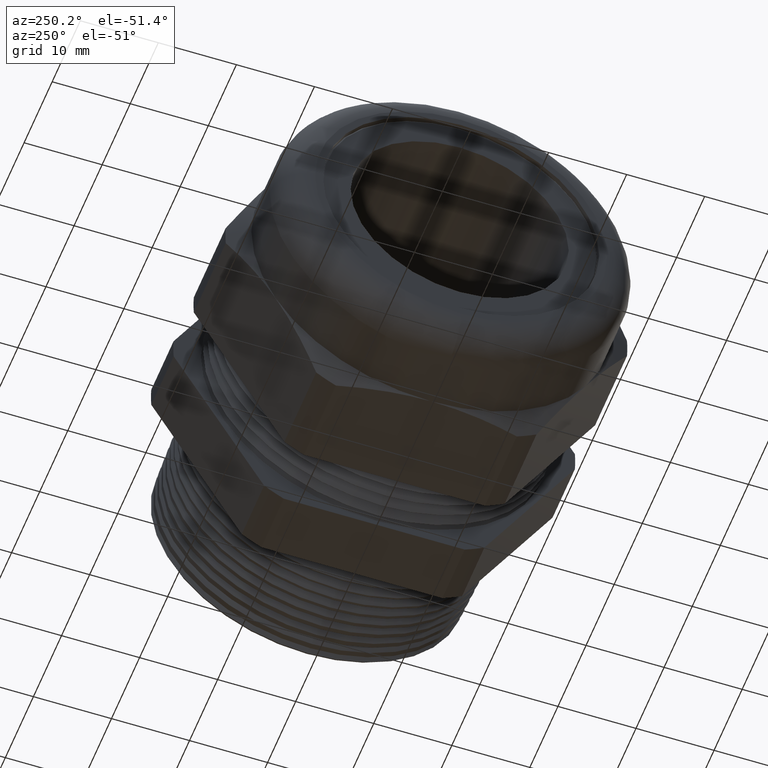
[diagram: clean part render]
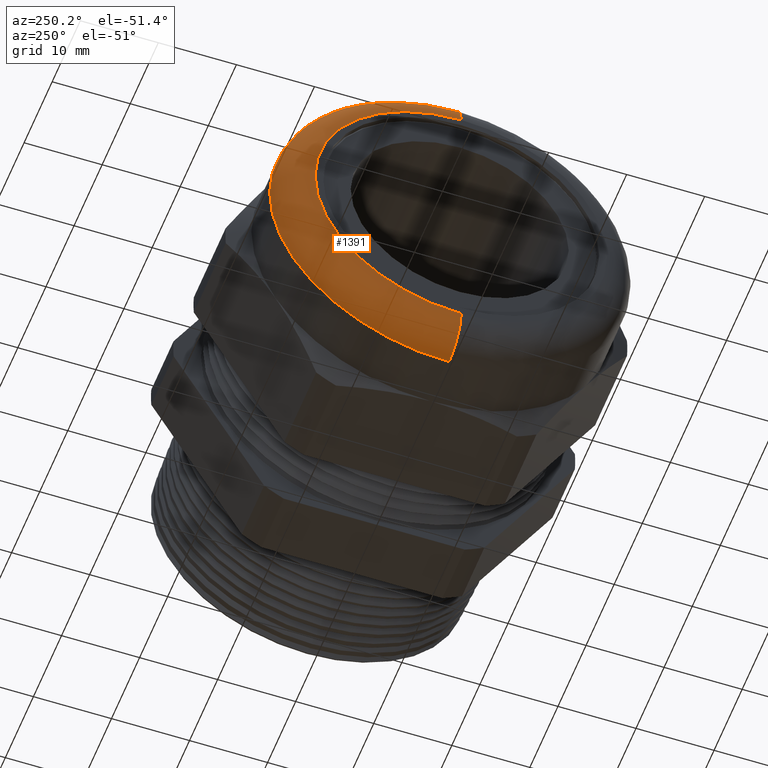
[diagram: same view with one face highlighted and labeled with its STEP entity id]
A machine part, auxiliary view. The second image highlights one B-rep face of the part: STEP entity #1391.
In plain terms, the highlighted toroidal blend (fillet) surface has major radius 18.7046 mm and minor (blend) radius 4.2824 mm.
Its self-contained STEP definition (entity closure, byte-faithful):
#1325 = ORIENTED_EDGE ( 'NONE', *, *, #1326, .T. ) ;
#1326 = EDGE_CURVE ( 'NONE', #1394, #1327, #4049, .T. ) ;
#1327 = VERTEX_POINT ( 'NONE', #4043 ) ;
#1328 = ORIENTED_EDGE ( 'NONE', *, *, #1329, .F. ) ;
#1329 = EDGE_CURVE ( 'NONE', #1387, #1327, #4041, .T. ) ;
#1387 = VERTEX_POINT ( 'NONE', #3728 ) ;
#1391 = ADVANCED_FACE ( 'NONE', ( #3763 ), #3743, .T. ) ;
#1392 = ORIENTED_EDGE ( 'NONE', *, *, #1393, .F. ) ;
#1393 = EDGE_CURVE ( 'NONE', #1394, #1395, #3739, .T. ) ;
#1394 = VERTEX_POINT ( 'NONE', #3734 ) ;
#1395 = VERTEX_POINT ( 'NONE', #3733 ) ;
#1452 = ORIENTED_EDGE ( 'NONE', *, *, #1453, .F. ) ;
#1453 = EDGE_CURVE ( 'NONE', #1395, #1387, #3814, .T. ) ;
#1543 = EDGE_LOOP ( 'NONE', ( #1392, #1325, #1328, #1452 ) ) ;
#3728 = CARTESIAN_POINT ( 'NONE',  ( -1.361399999999999900, 1.108305353228354500E-016, -0.9049999999999999200 ) ) ;
#3733 = CARTESIAN_POINT ( 'NONE',  ( -1.530000000000000000, 0.0000000000000000000, -0.7363999999999998300 ) ) ;
#3734 = CARTESIAN_POINT ( 'NONE',  ( -1.530000000000000000, 1.005067628060232600E-016, 0.7363999999999998300 ) ) ;
#3735 = DIRECTION ( 'NONE',  ( 0.0000000000000000000, 0.0000000000000000000, -1.000000000000000000 ) ) ;
#3736 = DIRECTION ( 'NONE',  ( -1.000000000000000000, 0.0000000000000000000, 0.0000000000000000000 ) ) ;
#3737 = CARTESIAN_POINT ( 'NONE',  ( -1.530000000000000000, 0.0000000000000000000, 0.0000000000000000000 ) ) ;
#3738 = AXIS2_PLACEMENT_3D ( 'NONE', #3737, #3736, #3735 ) ;
#3739 = CIRCLE ( 'NONE', #3738, 0.7363999999999998300 ) ;
#3740 = DIRECTION ( 'NONE',  ( 0.0000000000000000000, 0.0000000000000000000, -1.000000000000000000 ) ) ;
#3741 = DIRECTION ( 'NONE',  ( 1.000000000000000000, 0.0000000000000000000, 0.0000000000000000000 ) ) ;
#3742 = AXIS2_PLACEMENT_3D ( 'NONE', #3762, #3741, #3740 ) ;
#3743 = TOROIDAL_SURFACE ( 'NONE', #3742, 0.7363999999999998300, 0.1686000000000001100 ) ;
#3762 = CARTESIAN_POINT ( 'NONE',  ( -1.361399999999999900, 0.0000000000000000000, 0.0000000000000000000 ) ) ;
#3763 = FACE_OUTER_BOUND ( 'NONE', #1543, .T. ) ;
#3806 = DIRECTION ( 'NONE',  ( 0.0000000000000000000, 0.0000000000000000000, -1.000000000000000000 ) ) ;
#3807 = DIRECTION ( 'NONE',  ( 0.0000000000000000000, -1.000000000000000000, 0.0000000000000000000 ) ) ;
#3812 = CARTESIAN_POINT ( 'NONE',  ( -1.361399999999999900, 0.0000000000000000000, -0.7363999999999998300 ) ) ;
#3813 = AXIS2_PLACEMENT_3D ( 'NONE', #3812, #3807, #3806 ) ;
#3814 = CIRCLE ( 'NONE', #3813, 0.1686000000000000800 ) ;
#4040 = AXIS2_PLACEMENT_3D ( 'NONE', #4092, #4091, #4090 ) ;
#4041 = CIRCLE ( 'NONE', #4040, 0.9049999999999999200 ) ;
#4043 = CARTESIAN_POINT ( 'NONE',  ( -1.361399999999999900, 0.0000000000000000000, 0.9049999999999999200 ) ) ;
#4044 = DIRECTION ( 'NONE',  ( 0.0000000000000000000, 1.224646799147353900E-016, 1.000000000000000000 ) ) ;
#4046 = DIRECTION ( 'NONE',  ( 0.0000000000000000000, 1.000000000000000000, -1.224646799147353200E-016 ) ) ;
#4047 = CARTESIAN_POINT ( 'NONE',  ( -1.361399999999999900, 9.018299028921107300E-017, 0.7363999999999998300 ) ) ;
#4048 = AXIS2_PLACEMENT_3D ( 'NONE', #4047, #4046, #4044 ) ;
#4049 = CIRCLE ( 'NONE', #4048, 0.1686000000000000800 ) ;
#4090 = DIRECTION ( 'NONE',  ( 0.0000000000000000000, 0.0000000000000000000, -1.000000000000000000 ) ) ;
#4091 = DIRECTION ( 'NONE',  ( 1.000000000000000000, 0.0000000000000000000, 0.0000000000000000000 ) ) ;
#4092 = CARTESIAN_POINT ( 'NONE',  ( -1.361399999999999900, 0.0000000000000000000, 0.0000000000000000000 ) ) ;